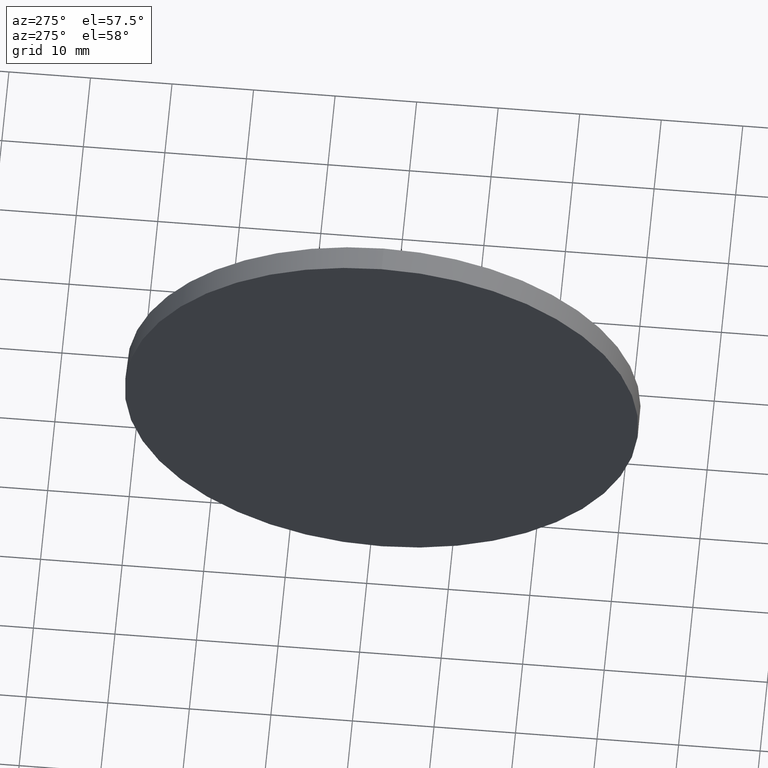
[diagram: clean part render]
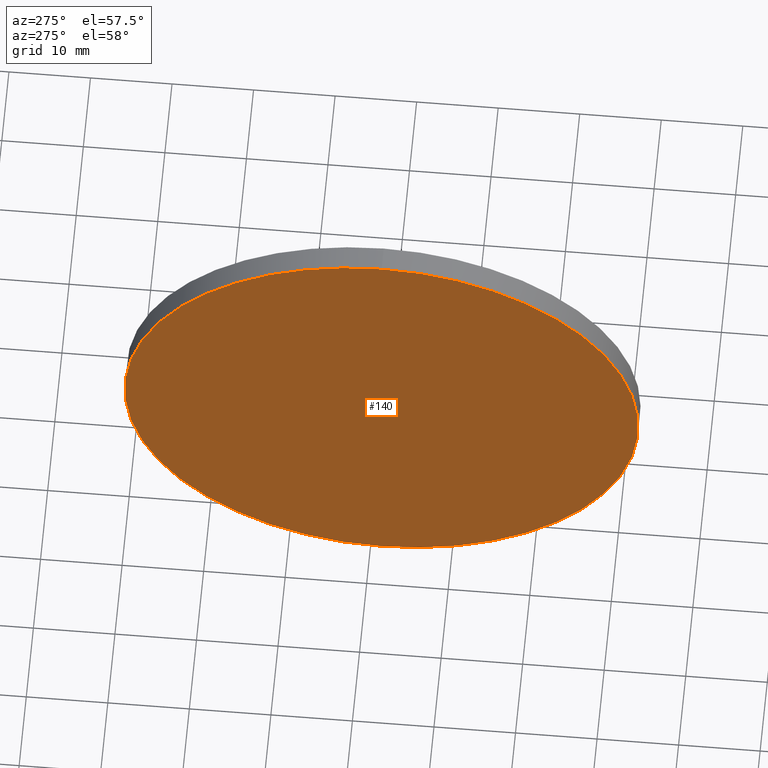
[diagram: same view with one face highlighted and labeled with its STEP entity id]
A machine part, auxiliary view. The second image highlights one B-rep face of the part: STEP entity #140.
In plain terms, the highlighted planar face has unit normal (1, 0, 0).
Its self-contained STEP definition (entity closure, byte-faithful):
#2 = CARTESIAN_POINT ( 'NONE',  ( 384.6625470284427600, 48.58872453449601600, -31.50000000000000700 ) ) ;
#11 = DIRECTION ( 'NONE',  ( 0.0000000000000000000, 0.0000000000000000000, 1.000000000000000000 ) ) ;
#12 = CARTESIAN_POINT ( 'NONE',  ( 384.6625470284427600, 48.58872453449600900, 0.0000000000000000000 ) ) ;
#15 = DIRECTION ( 'NONE',  ( -1.000000000000000000, -0.0000000000000000000, -0.0000000000000000000 ) ) ;
#17 = CIRCLE ( 'NONE', #159, 31.50000000000000700 ) ;
#25 = CARTESIAN_POINT ( 'NONE',  ( 384.6625470284427600, 48.58872453449600900, 31.50000000000000700 ) ) ;
#41 = EDGE_CURVE ( 'NONE', #186, #86, #110, .T. ) ;
#45 = CARTESIAN_POINT ( 'NONE',  ( 384.6625470284427600, 48.58872453449600900, 0.0000000000000000000 ) ) ;
#50 = AXIS2_PLACEMENT_3D ( 'NONE', #45, #150, #74 ) ;
#74 = DIRECTION ( 'NONE',  ( 0.0000000000000000000, 0.0000000000000000000, -1.000000000000000000 ) ) ;
#75 = CARTESIAN_POINT ( 'NONE',  ( 384.6625470284427600, 48.58872453449600900, 0.0000000000000000000 ) ) ;
#77 = DIRECTION ( 'NONE',  ( 0.0000000000000000000, 0.0000000000000000000, 1.000000000000000000 ) ) ;
#83 = AXIS2_PLACEMENT_3D ( 'NONE', #12, #162, #11 ) ;
#86 = VERTEX_POINT ( 'NONE', #2 ) ;
#110 = CIRCLE ( 'NONE', #83, 31.50000000000000700 ) ;
#140 = ADVANCED_FACE ( 'NONE', ( #174 ), #165, .F. ) ;
#150 = DIRECTION ( 'NONE',  ( 1.000000000000000000, 0.0000000000000000000, 0.0000000000000000000 ) ) ;
#157 = EDGE_LOOP ( 'NONE', ( #166, #183 ) ) ;
#158 = EDGE_CURVE ( 'NONE', #86, #186, #17, .T. ) ;
#159 = AXIS2_PLACEMENT_3D ( 'NONE', #75, #15, #77 ) ;
#162 = DIRECTION ( 'NONE',  ( -1.000000000000000000, -0.0000000000000000000, -0.0000000000000000000 ) ) ;
#165 = PLANE ( 'NONE',  #50 ) ;
#166 = ORIENTED_EDGE ( 'NONE', *, *, #41, .T. ) ;
#174 = FACE_OUTER_BOUND ( 'NONE', #157, .T. ) ;
#183 = ORIENTED_EDGE ( 'NONE', *, *, #158, .T. ) ;
#186 = VERTEX_POINT ( 'NONE', #25 ) ;